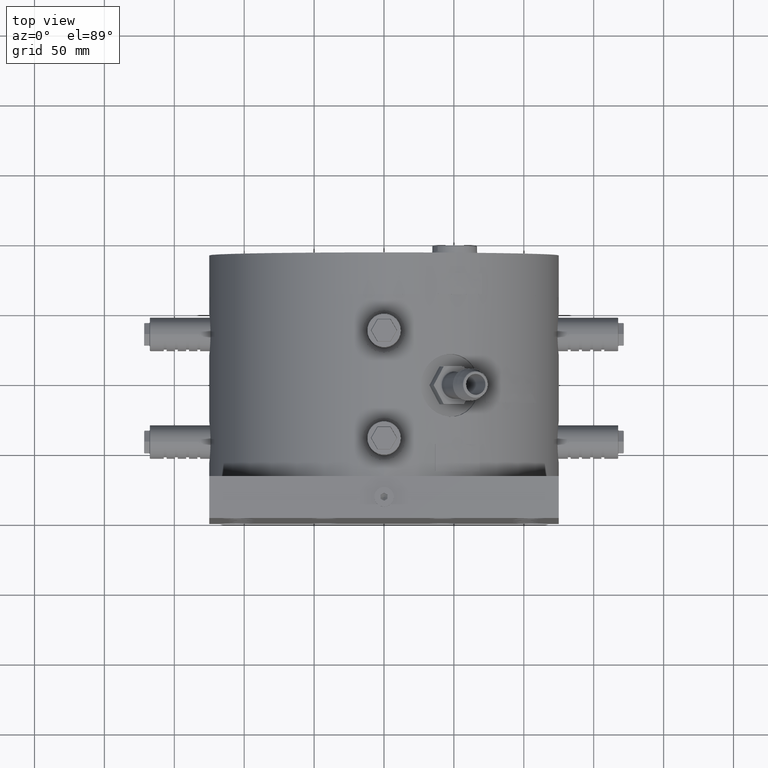
[diagram: clean part render]
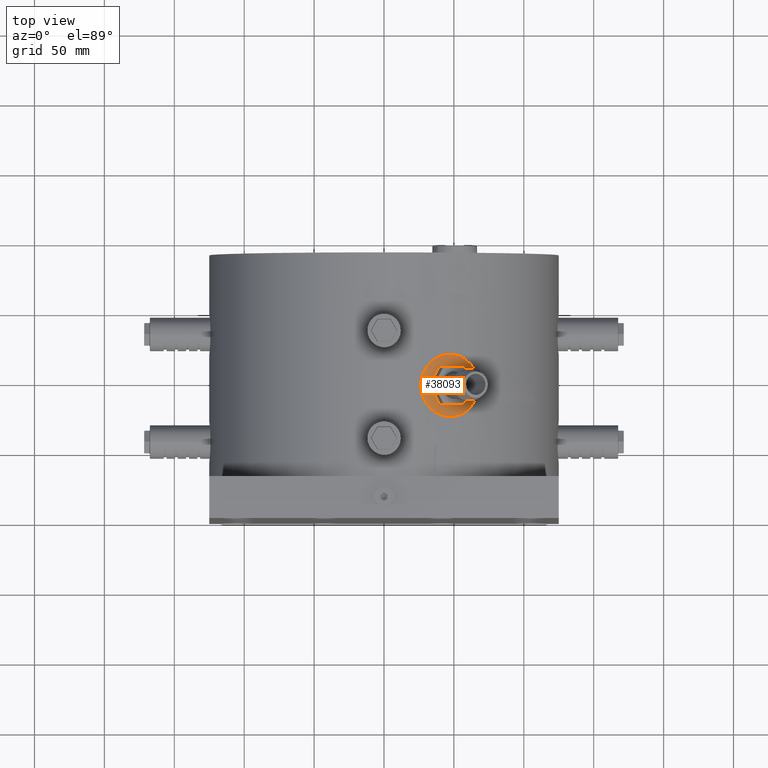
[diagram: same view with one face highlighted and labeled with its STEP entity id]
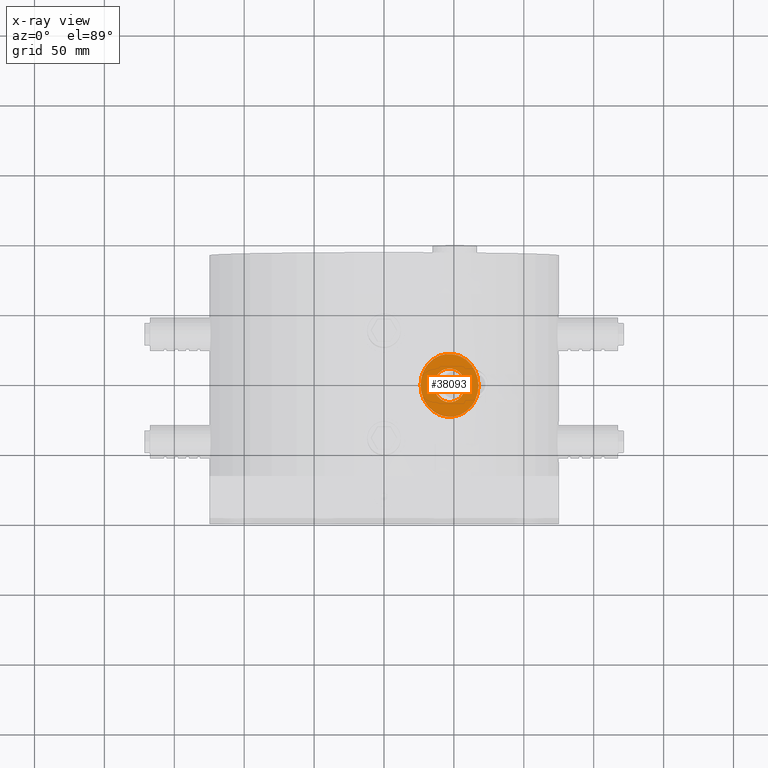
[diagram: x-ray of the same camera — body ghosted, the highlighted face saturated]
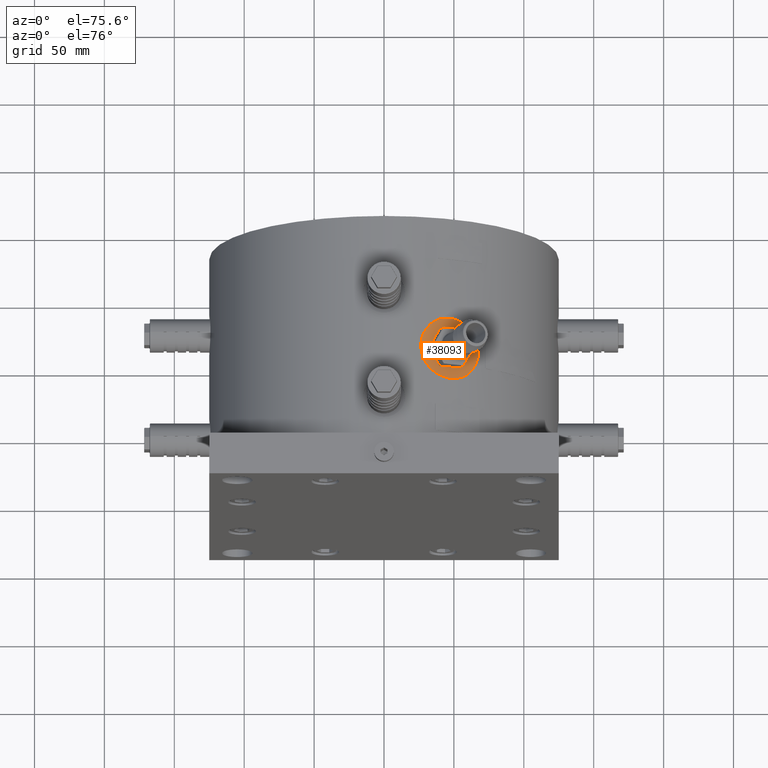
[diagram: same view with one face highlighted and labeled with its STEP entity id]
A machine part, top view. The second image highlights one B-rep face of the part: STEP entity #38093.
The next image is the same camera in x-ray: the body ghosted, the highlighted face saturated — about 0% of this face is hidden behind the body in this view.
A second angle (auxiliary view) of the same face is appended — the face is thin or edge-on in the first view.
In plain terms, the highlighted planar face has unit normal (-0.3827, 0, -0.9239).
Its self-contained STEP definition (entity closure, byte-faithful):
#898 = ORIENTED_EDGE ( 'NONE', *, *, #22567, .T. ) ;
#1796 = CARTESIAN_POINT ( 'NONE',  ( 58.01932180751087000, 95.00000000000000000, 108.5606545634581900 ) ) ;
#3468 = DIRECTION ( 'NONE',  ( -0.3826834323650903400, 0.0000000000000000000, -0.9238795325112865200 ) ) ;
#3731 = CARTESIAN_POINT ( 'NONE',  ( 26.09143098321956000, 95.00000000000000000, 121.7856199608471700 ) ) ;
#4088 = DIRECTION ( 'NONE',  ( 0.3826834323650903400, 0.0000000000000000000, 0.9238795325112865200 ) ) ;
#4128 = AXIS2_PLACEMENT_3D ( 'NONE', #20353, #3468, #71236 ) ;
#4556 = PLANE ( 'NONE',  #25261 ) ;
#4870 = DIRECTION ( 'NONE',  ( 0.9238795325112865200, 0.0000000000000000000, -0.3826834323650902300 ) ) ;
#6399 = CARTESIAN_POINT ( 'NONE',  ( 46.87872046472360000, 95.00000000000000000, 113.1752427326326000 ) ) ;
#9437 = VERTEX_POINT ( 'NONE', #3731 ) ;
#13160 = AXIS2_PLACEMENT_3D ( 'NONE', #38371, #27209, #4870 ) ;
#14625 = ORIENTED_EDGE ( 'NONE', *, *, #58584, .T. ) ;
#15735 = VERTEX_POINT ( 'NONE', #44552 ) ;
#16247 = VERTEX_POINT ( 'NONE', #1796 ) ;
#16721 = CARTESIAN_POINT ( 'NONE',  ( 46.87872046472360000, 95.00000000000000000, 113.1752427326326000 ) ) ;
#19093 = CIRCLE ( 'NONE', #4128, 12.05850000000000400 ) ;
#20353 = CARTESIAN_POINT ( 'NONE',  ( 46.87872046472360000, 95.00000000000000000, 113.1752427326326000 ) ) ;
#22567 = EDGE_CURVE ( 'NONE', #15735, #9437, #67685, .T. ) ;
#25261 = AXIS2_PLACEMENT_3D ( 'NONE', #16721, #27635, #39056 ) ;
#25865 = ORIENTED_EDGE ( 'NONE', *, *, #28428, .T. ) ;
#26694 = CARTESIAN_POINT ( 'NONE',  ( 46.87872046472360000, 95.00000000000000000, 113.1752427326326000 ) ) ;
#27209 = DIRECTION ( 'NONE',  ( 0.3826834323650903400, 0.0000000000000000000, 0.9238795325112865200 ) ) ;
#27414 = DIRECTION ( 'NONE',  ( 0.9238795325112865200, 0.0000000000000000000, -0.3826834323650902300 ) ) ;
#27635 = DIRECTION ( 'NONE',  ( -0.3826834323650903400, 0.0000000000000000000, -0.9238795325112866300 ) ) ;
#28428 = EDGE_CURVE ( 'NONE', #16247, #40367, #69715, .T. ) ;
#36936 = ORIENTED_EDGE ( 'NONE', *, *, #58134, .T. ) ;
#38093 = ADVANCED_FACE ( 'NONE', ( #49072, #66774 ), #4556, .F. ) ;
#38371 = CARTESIAN_POINT ( 'NONE',  ( 46.87872046472360000, 95.00000000000000000, 113.1752427326326000 ) ) ;
#39056 = DIRECTION ( 'NONE',  ( -0.9238795325112865200, 0.0000000000000000000, 0.3826834323650902800 ) ) ;
#40367 = VERTEX_POINT ( 'NONE', #72020 ) ;
#44552 = CARTESIAN_POINT ( 'NONE',  ( 67.66600994622746200, 95.00000000000000000, 104.5648655044180900 ) ) ;
#49072 = FACE_BOUND ( 'NONE', #54579, .T. ) ;
#51543 = EDGE_LOOP ( 'NONE', ( #898, #14625 ) ) ;
#51547 = AXIS2_PLACEMENT_3D ( 'NONE', #26694, #4088, #27414 ) ;
#54579 = EDGE_LOOP ( 'NONE', ( #25865, #36936 ) ) ;
#57781 = DIRECTION ( 'NONE',  ( -0.3826834323650903400, 0.0000000000000000000, -0.9238795325112865200 ) ) ;
#58134 = EDGE_CURVE ( 'NONE', #40367, #16247, #19093, .T. ) ;
#58584 = EDGE_CURVE ( 'NONE', #9437, #15735, #59023, .T. ) ;
#59023 = CIRCLE ( 'NONE', #13160, 22.50000000000000700 ) ;
#64176 = AXIS2_PLACEMENT_3D ( 'NONE', #6399, #57781, #68167 ) ;
#66774 = FACE_OUTER_BOUND ( 'NONE', #51543, .T. ) ;
#67685 = CIRCLE ( 'NONE', #51547, 22.50000000000000700 ) ;
#68167 = DIRECTION ( 'NONE',  ( -0.9238795325112867400, 0.0000000000000000000, 0.3826834323650901700 ) ) ;
#69715 = CIRCLE ( 'NONE', #64176, 12.05850000000000400 ) ;
#71236 = DIRECTION ( 'NONE',  ( -0.9238795325112867400, 0.0000000000000000000, 0.3826834323650901700 ) ) ;
#72020 = CARTESIAN_POINT ( 'NONE',  ( 35.73811912193615800, 95.00000000000000000, 117.7898309018070800 ) ) ;